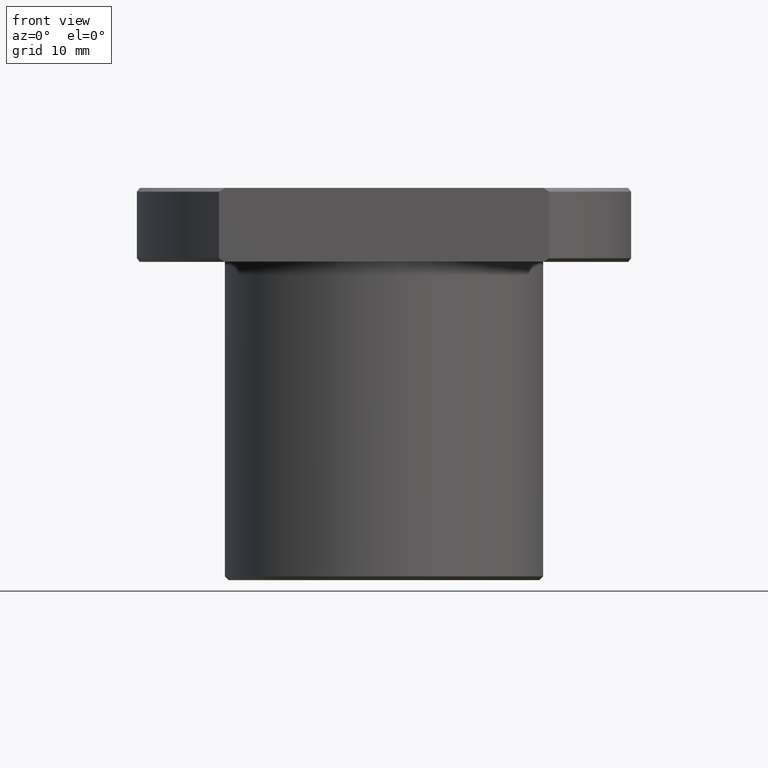
[diagram: clean part render]
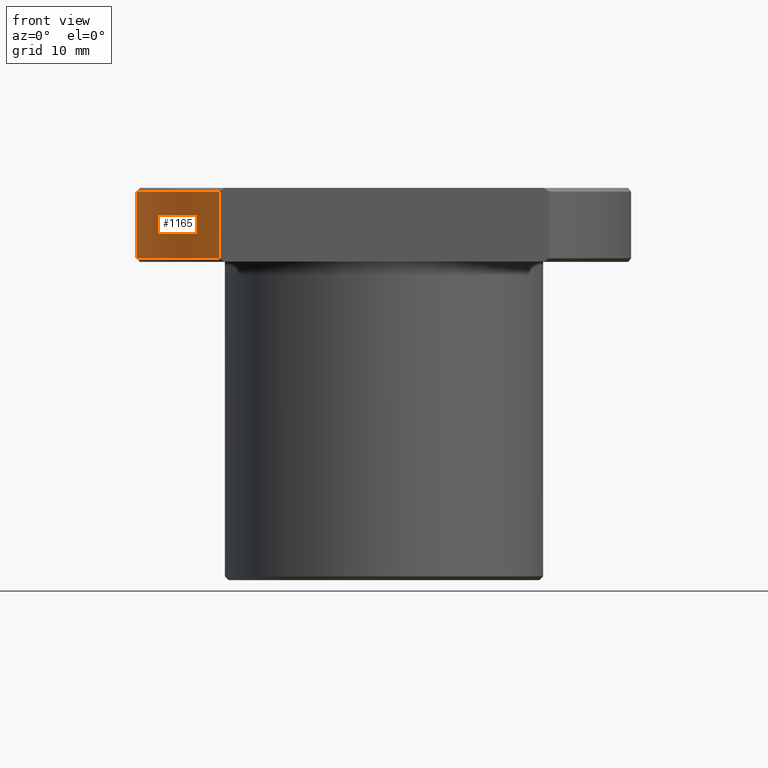
[diagram: same view with one face highlighted and labeled with its STEP entity id]
A machine part, front view. The second image highlights one B-rep face of the part: STEP entity #1165.
In plain terms, the highlighted cylindrical surface (partial cylindrical patch) has radius 33.5 mm, axis along (0, 0, 1).
Its self-contained STEP definition (entity closure, byte-faithful):
#906=AXIS2_PLACEMENT_3D('Circle Axis2P3D',#904,#905,$) ;
#1138=AXIS2_PLACEMENT_3D('Cylinder Axis2P3D',#1135,#1136,#1137) ;
#1156=AXIS2_PLACEMENT_3D('Circle Axis2P3D',#1154,#1155,$) ;
#901=CARTESIAN_POINT('Vertex',(-22.299103121,25.,52.5)) ;
#904=CARTESIAN_POINT('Axis2P3D Location',(3.73604524713E-027,2.71734945743E-015,52.5)) ;
#908=CARTESIAN_POINT('Vertex',(-22.299103121,-25.,52.5)) ;
#1135=CARTESIAN_POINT('Axis2P3D Location',(0.,0.,48.)) ;
#1140=CARTESIAN_POINT('Line Origine',(-22.299103121,-25.,48.)) ;
#1144=CARTESIAN_POINT('Vertex',(-22.299103121,-25.,43.5)) ;
#1147=CARTESIAN_POINT('Line Origine',(-22.299103121,25.,48.)) ;
#1151=CARTESIAN_POINT('Vertex',(-22.299103121,25.,43.5)) ;
#1154=CARTESIAN_POINT('Axis2P3D Location',(0.,0.,43.5)) ;
#905=DIRECTION('Axis2P3D Direction',(8.78214051559E-015,-9.34656331506E-015,1.)) ;
#1136=DIRECTION('Axis2P3D Direction',(0.,0.,1.)) ;
#1137=DIRECTION('Axis2P3D XDirection',(-0.665644869283,0.746268656716,0.)) ;
#1141=DIRECTION('Vector Direction',(0.,0.,1.)) ;
#1148=DIRECTION('Vector Direction',(0.,0.,1.)) ;
#1155=DIRECTION('Axis2P3D Direction',(0.,0.,1.)) ;
#1142=VECTOR('Line Direction',#1141,1.) ;
#1149=VECTOR('Line Direction',#1148,1.) ;
#1160=ORIENTED_EDGE('',*,*,#1146,.T.) ;
#1161=ORIENTED_EDGE('',*,*,#910,.F.) ;
#1162=ORIENTED_EDGE('',*,*,#1153,.F.) ;
#1163=ORIENTED_EDGE('',*,*,#1158,.T.) ;
#1165=ADVANCED_FACE('',(#1164),#1139,.T.) ;
#907=CIRCLE('generated circle',#906,33.5) ;
#1157=CIRCLE('generated circle',#1156,33.5) ;
#1139=CYLINDRICAL_SURFACE('generated cylinder',#1138,33.5) ;
#910=EDGE_CURVE('',#902,#909,#907,.T.) ;
#1146=EDGE_CURVE('',#1145,#909,#1143,.T.) ;
#1153=EDGE_CURVE('',#1152,#902,#1150,.T.) ;
#1158=EDGE_CURVE('',#1152,#1145,#1157,.T.) ;
#1159=EDGE_LOOP('',(#1160,#1161,#1162,#1163)) ;
#1164=FACE_OUTER_BOUND('',#1159,.T.) ;
#1143=LINE('Line',#1140,#1142) ;
#1150=LINE('Line',#1147,#1149) ;
#902=VERTEX_POINT('',#901) ;
#909=VERTEX_POINT('',#908) ;
#1145=VERTEX_POINT('',#1144) ;
#1152=VERTEX_POINT('',#1151) ;